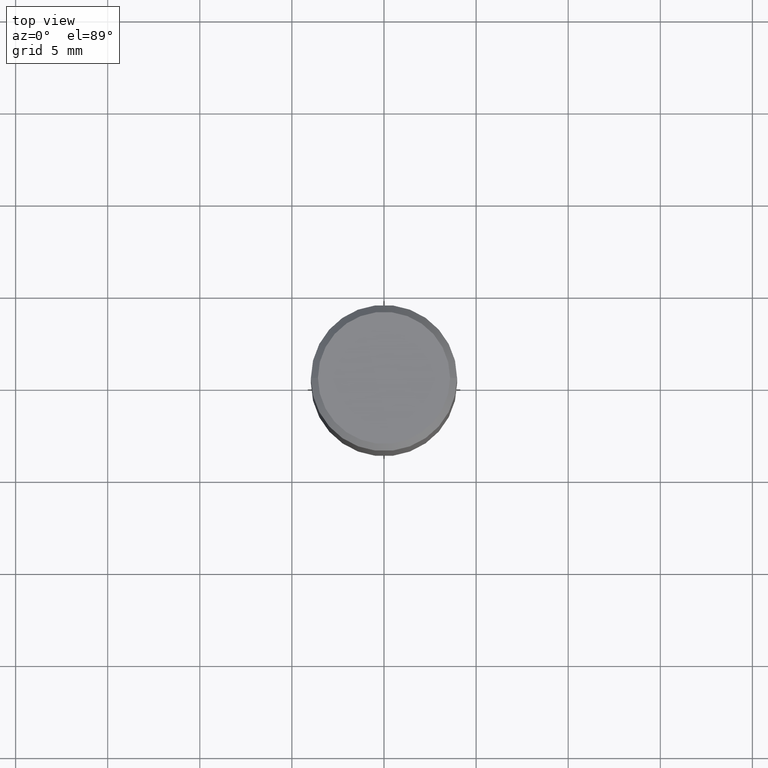
[diagram: clean part render]
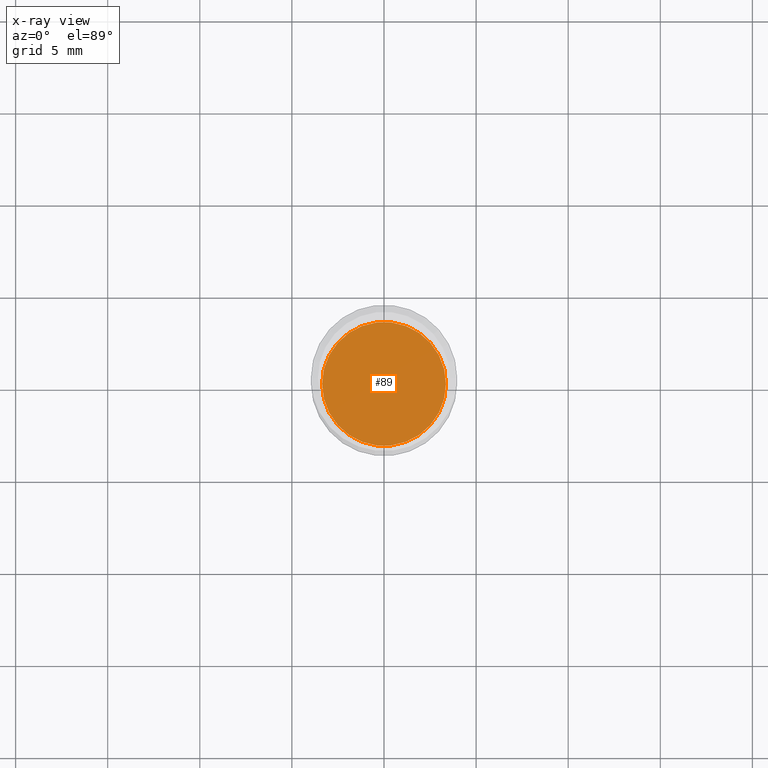
[diagram: x-ray — body ghosted, one internal face saturated and labeled with its STEP entity id]
A machine part, top view, then the same camera in x-ray: the body is ghosted and one INTERNAL B-rep face — a face not visible from any outside direction — is saturated and labeled: STEP entity #89.
In plain terms, the highlighted planar face has unit normal (-0, 0, 1).
Its self-contained STEP definition (entity closure, byte-faithful):
#12 = CARTESIAN_POINT ( 'NONE',  ( -0.1323000000000000009, -1.675913737547635335E-15, -0.7500000000000001110 ) ) ;
#17 = EDGE_CURVE ( 'NONE', #260, #193, #23, .T. ) ;
#23 = CIRCLE ( 'NONE', #277, 0.1323000000000000009 ) ;
#25 = EDGE_CURVE ( 'NONE', #193, #260, #346, .T. ) ;
#39 = PLANE ( 'NONE',  #205 ) ;
#46 = EDGE_LOOP ( 'NONE', ( #224, #137 ) ) ;
#65 = DIRECTION ( 'NONE',  ( -2.438088387897960049E-29, 3.491481338843145188E-15, 1.000000000000000000 ) ) ;
#82 = CARTESIAN_POINT ( 'NONE',  ( 0.1323000000000000009, -3.542456966390252304E-15, -0.7500000000000001110 ) ) ;
#89 = ADVANCED_FACE ( 'NONE', ( #141 ), #39, .F. ) ;
#137 = ORIENTED_EDGE ( 'NONE', *, *, #17, .F. ) ;
#139 = AXIS2_PLACEMENT_3D ( 'NONE', #239, #458, #355 ) ;
#141 = FACE_OUTER_BOUND ( 'NONE', #46, .T. ) ;
#193 = VERTEX_POINT ( 'NONE', #82 ) ;
#205 = AXIS2_PLACEMENT_3D ( 'NONE', #465, #65, #317 ) ;
#224 = ORIENTED_EDGE ( 'NONE', *, *, #25, .F. ) ;
#239 = CARTESIAN_POINT ( 'NONE',  ( 1.834101604638852448E-29, -2.618611004132359088E-15, -0.7500000000000001110 ) ) ;
#260 = VERTEX_POINT ( 'NONE', #12 ) ;
#277 = AXIS2_PLACEMENT_3D ( 'NONE', #308, #424, #323 ) ;
#308 = CARTESIAN_POINT ( 'NONE',  ( 1.834101604638852448E-29, -2.618611004132359088E-15, -0.7500000000000001110 ) ) ;
#317 = DIRECTION ( 'NONE',  ( 1.000000000000000000, -6.982962677686265922E-15, 4.876176775795935793E-29 ) ) ;
#323 = DIRECTION ( 'NONE',  ( 1.000000000000000000, -6.982962677686267499E-15, 0.000000000000000000 ) ) ;
#346 = CIRCLE ( 'NONE', #139, 0.1323000000000000009 ) ;
#355 = DIRECTION ( 'NONE',  ( 1.000000000000000000, -6.982962677686267499E-15, 0.000000000000000000 ) ) ;
#424 = DIRECTION ( 'NONE',  ( -2.445468806185136597E-29, 3.491481338843145583E-15, 1.000000000000000000 ) ) ;
#458 = DIRECTION ( 'NONE',  ( -2.445468806185136597E-29, 3.491481338843145583E-15, 1.000000000000000000 ) ) ;
#465 = CARTESIAN_POINT ( 'NONE',  ( 1.834101604638852448E-29, -2.618611004132359088E-15, -0.7500000000000001110 ) ) ;